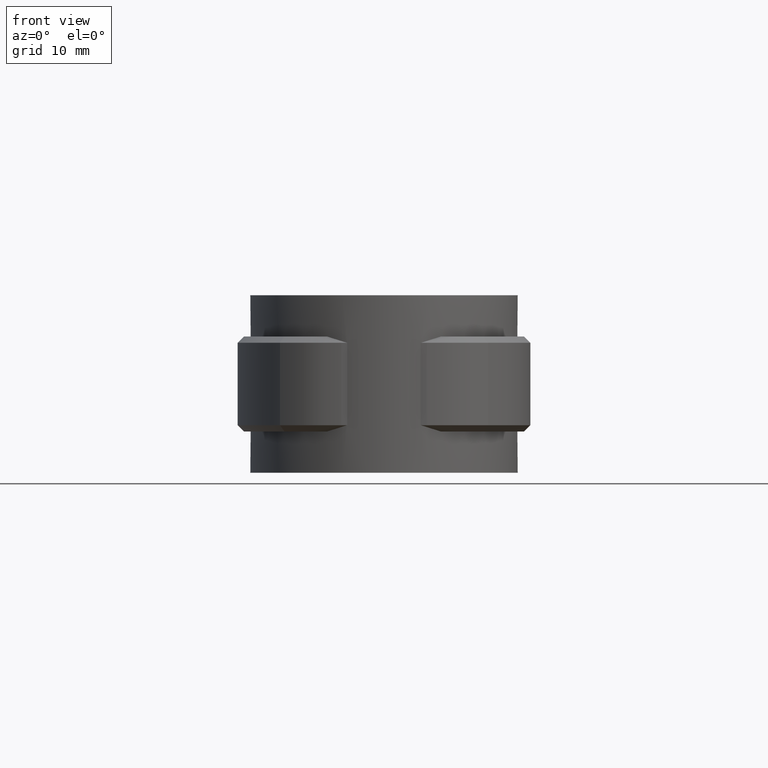
[diagram: clean part render]
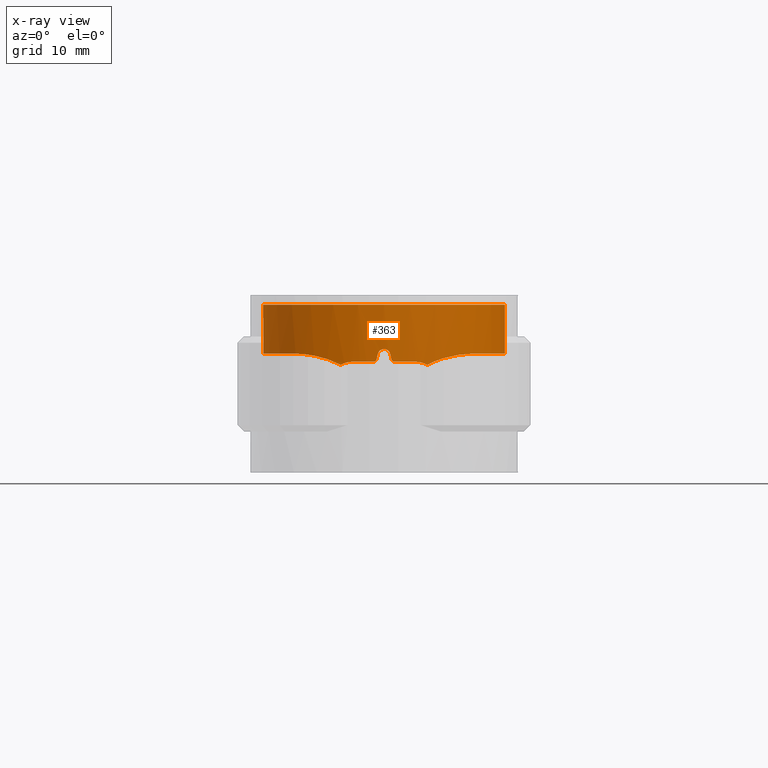
[diagram: x-ray — body ghosted, one internal face saturated and labeled with its STEP entity id]
A machine part, front view, then the same camera in x-ray: the body is ghosted and one INTERNAL B-rep face — a face not visible from any outside direction — is saturated and labeled: STEP entity #363.
In plain terms, the highlighted cylindrical surface (partial cylindrical patch) has radius 19.1 mm, axis along (0, 0, 1).
Its self-contained STEP definition (entity closure, byte-faithful):
#363 = ADVANCED_FACE( '', ( #695 ), #696, .T. );
#695 = FACE_OUTER_BOUND( '', #1404, .T. );
#696 = CYLINDRICAL_SURFACE( '', #1405, 19.1000000000000 );
#1404 = EDGE_LOOP( '', ( #2629, #2630, #2631, #2632, #2633, #2634, #2635, #2636, #2637, #2638, #2639, #2640, #2641, #2642, #2643, #2644 ) );
#1405 = AXIS2_PLACEMENT_3D( '', #2645, #2646, #2647 );
#2629 = ORIENTED_EDGE( '', *, *, #6118, .F. );
#2630 = ORIENTED_EDGE( '', *, *, #6119, .F. );
#2631 = ORIENTED_EDGE( '', *, *, #6120, .F. );
#2632 = ORIENTED_EDGE( '', *, *, #6121, .F. );
#2633 = ORIENTED_EDGE( '', *, *, #6122, .F. );
#2634 = ORIENTED_EDGE( '', *, *, #6123, .T. );
#2635 = ORIENTED_EDGE( '', *, *, #6124, .F. );
#2636 = ORIENTED_EDGE( '', *, *, #6125, .F. );
#2637 = ORIENTED_EDGE( '', *, *, #6126, .F. );
#2638 = ORIENTED_EDGE( '', *, *, #6127, .F. );
#2639 = ORIENTED_EDGE( '', *, *, #6128, .F. );
#2640 = ORIENTED_EDGE( '', *, *, #6129, .F. );
#2641 = ORIENTED_EDGE( '', *, *, #6130, .F. );
#2642 = ORIENTED_EDGE( '', *, *, #6131, .F. );
#2643 = ORIENTED_EDGE( '', *, *, #6132, .F. );
#2644 = ORIENTED_EDGE( '', *, *, #6133, .F. );
#2645 = CARTESIAN_POINT( '', ( 0.000000000000000, 0.000000000000000, 0.000000000000000 ) );
#2646 = DIRECTION( '', ( 0.000000000000000, 0.000000000000000, 1.00000000000000 ) );
#2647 = DIRECTION( '', ( 1.00000000000000, -6.12303176911189E-017, 0.000000000000000 ) );
#6118 = EDGE_CURVE( '', #7041, #7042, #7043, .T. );
#6119 = EDGE_CURVE( '', #7044, #7041, #7045, .T. );
#6120 = EDGE_CURVE( '', #7046, #7044, #7047, .T. );
#6121 = EDGE_CURVE( '', #7048, #7046, #7049, .T. );
#6122 = EDGE_CURVE( '', #7050, #7048, #7051, .F. );
#6123 = EDGE_CURVE( '', #7050, #7052, #7053, .T. );
#6124 = EDGE_CURVE( '', #7054, #7052, #7055, .T. );
#6125 = EDGE_CURVE( '', #7056, #7054, #7057, .T. );
#6126 = EDGE_CURVE( '', #7058, #7056, #7059, .T. );
#6127 = EDGE_CURVE( '', #7060, #7058, #7061, .T. );
#6128 = EDGE_CURVE( '', #7062, #7060, #7063, .T. );
#6129 = EDGE_CURVE( '', #7064, #7062, #7065, .T. );
#6130 = EDGE_CURVE( '', #7066, #7064, #7067, .T. );
#6131 = EDGE_CURVE( '', #7068, #7066, #7069, .T. );
#6132 = EDGE_CURVE( '', #7070, #7068, #7071, .T. );
#6133 = EDGE_CURVE( '', #7042, #7070, #7072, .T. );
#7041 = VERTEX_POINT( '', #8577 );
#7042 = VERTEX_POINT( '', #8578 );
#7043 = B_SPLINE_CURVE_WITH_KNOTS( '', 3, ( #8579, #8580, #8581, #8582, #8583, #8584, #8585, #8586 ), .UNSPECIFIED., .F., .F., ( 4, 2, 2, 4 ), ( 0.00930485489728146, 0.00980159790012564, 0.0102983409029698, 0.0112918269086582 ), .UNSPECIFIED. );
#7044 = VERTEX_POINT( '', #8587 );
#7045 = B_SPLINE_CURVE_WITH_KNOTS( '', 3, ( #8588, #8589, #8590, #8591, #8592, #8593, #8594, #8595, #8596, #8597, #8598, #8599 ), .UNSPECIFIED., .F., .F., ( 4, 2, 2, 2, 2, 4 ), ( 0.000000000000000, 0.00223758353469312, 0.00335637530203968, 0.00447516706938624, 0.00671275060407937, 0.00895033413877250 ), .UNSPECIFIED. );
#7046 = VERTEX_POINT( '', #8600 );
#7047 = B_SPLINE_CURVE_WITH_KNOTS( '', 3, ( #8601, #8602, #8603, #8604, #8605, #8606, #8607, #8608, #8609, #8610, #8611, #8612, #8613, #8614, #8615, #8616, #8617, #8618, #8619, #8620, #8621, #8622, #8623, #8624, #8625, #8626, #8627, #8628, #8629, #8630, #8631, #8632, #8633, #8634, #8635, #8636 ), .UNSPECIFIED., .F., .F., ( 4, 2, 2, 2, 2, 2, 2, 2, 2, 2, 2, 2, 2, 2, 2, 2, 2, 4 ), ( 0.000000000000000, 0.00475108088717999, 0.00593885110897499, 0.00712662133076999, 0.00950216177435998, 0.0118777022179500, 0.0130654724397450, 0.0142532426615400, 0.0190043235487200, 0.0201920937705150, 0.0213798639923100, 0.0237554044358999, 0.0249431746576949, 0.0261309448794899, 0.0285064853230799, 0.0308820257666699, 0.0332575662102599, 0.0380086470974399 ), .UNSPECIFIED. );
#7048 = VERTEX_POINT( '', #8637 );
#7049 = LINE( '', #8638, #8639 );
#7050 = VERTEX_POINT( '', #8640 );
#7051 = CIRCLE( '', #8641, 19.1000000000000 );
#7052 = VERTEX_POINT( '', #8642 );
#7053 = LINE( '', #8643, #8644 );
#7054 = VERTEX_POINT( '', #8645 );
#7055 = B_SPLINE_CURVE_WITH_KNOTS( '', 3, ( #8646, #8647, #8648, #8649, #8650, #8651, #8652, #8653, #8654, #8655, #8656, #8657, #8658, #8659, #8660, #8661, #8662, #8663, #8664, #8665, #8666, #8667, #8668, #8669, #8670, #8671, #8672, #8673, #8674, #8675, #8676, #8677, #8678, #8679, #8680, #8681 ), .UNSPECIFIED., .F., .F., ( 4, 2, 2, 2, 2, 2, 2, 2, 2, 2, 2, 2, 2, 2, 2, 2, 2, 4 ), ( 0.000000000000000, 0.00475107654079164, 0.00593884567598955, 0.00712661481118747, 0.00950215308158330, 0.0118776913519791, 0.0130654604871770, 0.0142532296223750, 0.0190043061631666, 0.0201920752983645, 0.0213798444335624, 0.0237553827039583, 0.0249431518391562, 0.0261309209743541, 0.0285064592447499, 0.0308819975151458, 0.0332575357855416, 0.0380086123263332 ), .UNSPECIFIED. );
#7056 = VERTEX_POINT( '', #8682 );
#7057 = B_SPLINE_CURVE_WITH_KNOTS( '', 3, ( #8683, #8684, #8685, #8686, #8687, #8688, #8689, #8690, #8691, #8692, #8693, #8694 ), .UNSPECIFIED., .F., .F., ( 4, 2, 2, 2, 2, 4 ), ( 0.00175160211347894, 0.00396907568867248, 0.00618654926386603, 0.00729528605146280, 0.00840402283905958, 0.0106214964142531 ), .UNSPECIFIED. );
#7058 = VERTEX_POINT( '', #8695 );
#7059 = B_SPLINE_CURVE_WITH_KNOTS( '', 3, ( #8696, #8697, #8698, #8699, #8700, #8701, #8702, #8703 ), .UNSPECIFIED., .F., .F., ( 4, 2, 2, 4 ), ( 3.46944695195361E-018, 0.000996698371651512, 0.00149504755747727, 0.00199339674330302 ), .UNSPECIFIED. );
#7060 = VERTEX_POINT( '', #8704 );
#7061 = CIRCLE( '', #8705, 19.1000000000000 );
#7062 = VERTEX_POINT( '', #8706 );
#7063 = B_SPLINE_CURVE_WITH_KNOTS( '', 3, ( #8707, #8708, #8709, #8710, #8711, #8712 ), .UNSPECIFIED., .F., .F., ( 4, 2, 4 ), ( 4.33680868994202E-019, 0.000336337775742347, 0.000672675551484694 ), .UNSPECIFIED. );
#7064 = VERTEX_POINT( '', #8713 );
#7065 = ELLIPSE( '', #8714, 87.0111998839009, 19.1000000000000 );
#7066 = VERTEX_POINT( '', #8715 );
#7067 = B_SPLINE_CURVE_WITH_KNOTS( '', 3, ( #8716, #8717, #8718, #8719, #8720, #8721, #8722, #8723, #8724, #8725 ), .UNSPECIFIED., .F., .F., ( 4, 2, 2, 2, 4 ), ( 0.000000000000000, 0.000671676872309651, 0.00134335374461930, 0.00201503061692895, 0.00268670748923860 ), .UNSPECIFIED. );
#7068 = VERTEX_POINT( '', #8726 );
#7069 = ELLIPSE( '', #8727, 87.0111554974909, 19.1000000000000 );
#7070 = VERTEX_POINT( '', #8728 );
#7071 = B_SPLINE_CURVE_WITH_KNOTS( '', 3, ( #8729, #8730, #8731, #8732, #8733, #8734 ), .UNSPECIFIED., .F., .F., ( 4, 2, 4 ), ( 8.20849171219253E-018, 0.000336327118468111, 0.000672654236936215 ), .UNSPECIFIED. );
#7072 = CIRCLE( '', #8735, 19.1000000000000 );
#8577 = CARTESIAN_POINT( '', ( 6.81905526878743, -17.8412579500788, -9.50984315978298 ) );
#8578 = CARTESIAN_POINT( '', ( 5.00000000000000, -18.4339360962329, -9.00000000000000 ) );
#8579 = CARTESIAN_POINT( '', ( 6.81905526878724, -17.8412579500781, -9.50984315978286 ) );
#8580 = CARTESIAN_POINT( '', ( 6.68368271215043, -17.8929983009080, -9.42748956578827 ) );
#8581 = CARTESIAN_POINT( '', ( 6.54119389277558, -17.9456552154205, -9.35360424239617 ) );
#8582 = CARTESIAN_POINT( '', ( 6.25071525526398, -18.0488868756841, -9.22726471757245 ) );
#8583 = CARTESIAN_POINT( '', ( 6.10205342860325, -18.0997396329836, -9.17427268426421 ) );
#8584 = CARTESIAN_POINT( '', ( 5.64566298384221, -18.2493565032353, -9.04557456820889 ) );
#8585 = CARTESIAN_POINT( '', ( 5.32448815223454, -18.3459222964290, -8.99999999999994 ) );
#8586 = CARTESIAN_POINT( '', ( 5.00000000000000, -18.4339360962330, -8.99999999999994 ) );
#8587 = CARTESIAN_POINT( '', ( 13.9497974310064, -13.0465800234959, -7.72134842581987 ) );
#8588 = CARTESIAN_POINT( '', ( 13.9487375409338, -13.0477094163743, -7.72135718793490 ) );
#8589 = CARTESIAN_POINT( '', ( 13.4375300633922, -13.5942190530959, -7.73205241137676 ) );
#8590 = CARTESIAN_POINT( '', ( 12.8974956627212, -14.1073780023349, -7.76999278455775 ) );
#8591 = CARTESIAN_POINT( '', ( 12.0451717407557, -14.8277515103729, -7.87211065263761 ) );
#8592 = CARTESIAN_POINT( '', ( 11.7537896944007, -15.0596842705441, -7.91397282004264 ) );
#8593 = CARTESIAN_POINT( '', ( 11.1644459084714, -15.5016389477206, -8.01349445764533 ) );
#8594 = CARTESIAN_POINT( '', ( 10.8656252400343, -15.7124170119223, -8.07122112833062 ) );
#8595 = CARTESIAN_POINT( '', ( 9.95800661632357, -16.3148872225008, -8.27142640207177 ) );
#8596 = CARTESIAN_POINT( '', ( 9.33787226663545, -16.6767989057806, -8.44006696159535 ) );
#8597 = CARTESIAN_POINT( '', ( 8.07731289124751, -17.3224852913412, -8.88128701216452 ) );
#8598 = CARTESIAN_POINT( '', ( 7.43085125747946, -17.6074251860550, -9.15670282519943 ) );
#8599 = CARTESIAN_POINT( '', ( 6.81905526878942, -17.8412579500773, -9.50984315978024 ) );
#8600 = CARTESIAN_POINT( '', ( 6.05609756097560, 18.1144605862815, -7.72310677885710 ) );
#8601 = CARTESIAN_POINT( '', ( 6.05609756097560, 18.1144605862815, -7.72310677885712 ) );
#8602 = CARTESIAN_POINT( '', ( 7.57969694207757, 17.6050848611890, -7.72562012981628 ) );
#8603 = CARTESIAN_POINT( '', ( 9.00781461851785, 16.9172655312135, -7.72756432809327 ) );
#8604 = CARTESIAN_POINT( '', ( 10.6774888721976, 15.8416861069945, -7.72556171551318 ) );
#8605 = CARTESIAN_POINT( '', ( 11.0055643952891, 15.6156198358674, -7.72500931238455 ) );
#8606 = CARTESIAN_POINT( '', ( 11.6497459801908, 15.1411178290845, -7.72378723809442 ) );
#8607 = CARTESIAN_POINT( '', ( 11.9661862444493, 14.8922751207296, -7.72311724225985 ) );
#8608 = CARTESIAN_POINT( '', ( 12.8841862084422, 14.1225221465428, -7.72141074492537 ) );
#8609 = CARTESIAN_POINT( '', ( 13.4590934723205, 13.5753396746223, -7.72102008189725 ) );
#8610 = CARTESIAN_POINT( '', ( 14.5366058856560, 12.4146741279481, -7.72209307797864 ) );
#8611 = CARTESIAN_POINT( '', ( 15.0392097496581, 11.8011898132735, -7.72312844814024 ) );
#8612 = CARTESIAN_POINT( '', ( 15.7377328261334, 10.8301774324812, -7.72407804340158 ) );
#8613 = CARTESIAN_POINT( '', ( 15.9619535607510, 10.4969838253384, -7.72430459482359 ) );
#8614 = CARTESIAN_POINT( '', ( 16.3882395453966, 9.81815845806580, -7.72448464818963 ) );
#8615 = CARTESIAN_POINT( '', ( 16.5896568409422, 9.47372222854536, -7.72443862695567 ) );
#8616 = CARTESIAN_POINT( '', ( 17.5394804084396, 7.72700837476189, -7.72358711091556 ) );
#8617 = CARTESIAN_POINT( '', ( 18.1187582240814, 6.25227254480824, -7.72049976296089 ) );
#8618 = CARTESIAN_POINT( '', ( 18.6117181531904, 4.30982503804202, -7.72188431563499 ) );
#8619 = CARTESIAN_POINT( '', ( 18.6981535280275, 3.91765520529962, -7.72231305974907 ) );
#8620 = CARTESIAN_POINT( '', ( 18.8453538199351, 3.13394433051340, -7.72317948483669 ) );
#8621 = CARTESIAN_POINT( '', ( 18.9064230279706, 2.74124292481065, -7.72361810307561 ) );
#8622 = CARTESIAN_POINT( '', ( 19.0526474488858, 1.56064189680553, -7.72466713815329 ) );
#8623 = CARTESIAN_POINT( '', ( 19.1009604714527, 0.770254973364756, -7.72496397996976 ) );
#8624 = CARTESIAN_POINT( '', ( 19.0994981536895, -0.420316774834448, -7.72453235057386 ) );
#8625 = CARTESIAN_POINT( '', ( 19.0866535791344, -0.818008289223871, -7.72425400711996 ) );
#8626 = CARTESIAN_POINT( '', ( 19.0357810945132, -1.61509149366079, -7.72352624738677 ) );
#8627 = CARTESIAN_POINT( '', ( 18.9975364675251, -2.01584394781422, -7.72307515961964 ) );
#8628 = CARTESIAN_POINT( '', ( 18.8459467068403, -3.20630119459723, -7.72177922285933 ) );
#8629 = CARTESIAN_POINT( '', ( 18.6961347971829, -3.98644916271011, -7.72102289809109 ) );
#8630 = CARTESIAN_POINT( '', ( 18.3019266073316, -5.52057204836203, -7.72184820040979 ) );
#8631 = CARTESIAN_POINT( '', ( 18.0575251328200, -6.27454562977232, -7.72306305140462 ) );
#8632 = CARTESIAN_POINT( '', ( 17.4725612059799, -7.75588432648445, -7.72476107474609 ) );
#8633 = CARTESIAN_POINT( '', ( 17.1295431999573, -8.48668405816067, -7.72522902838233 ) );
#8634 = CARTESIAN_POINT( '', ( 15.9798247934780, -10.5827891285198, -7.72453653077102 ) );
#8635 = CARTESIAN_POINT( '', ( 15.0500236748557, -11.8696085672741, -7.72043645344049 ) );
#8636 = CARTESIAN_POINT( '', ( 13.9529666093793, -13.0431868344184, -7.72131128926675 ) );
#8637 = CARTESIAN_POINT( '', ( 6.05609756097560, 18.1144605862815, 0.000000000000000 ) );
#8638 = CARTESIAN_POINT( '', ( 6.05609756097560, 18.1144605862815, 0.000000000000000 ) );
#8639 = VECTOR( '', #12319, 1000.00000000000 );
#8640 = CARTESIAN_POINT( '', ( -6.05609756097562, 18.1144605862815, 0.000000000000000 ) );
#8641 = AXIS2_PLACEMENT_3D( '', #12320, #12321, #12322 );
#8642 = CARTESIAN_POINT( '', ( -6.05609756097561, 18.1144605862815, -7.72310677885710 ) );
#8643 = CARTESIAN_POINT( '', ( -6.05609756097561, 18.1144605862815, 0.000000000000000 ) );
#8644 = VECTOR( '', #12323, 1000.00000000000 );
#8645 = CARTESIAN_POINT( '', ( -13.9497974301472, -13.0465800259749, -7.72134842667798 ) );
#8646 = CARTESIAN_POINT( '', ( -13.9529666093794, -13.0431868344184, -7.72131128926690 ) );
#8647 = CARTESIAN_POINT( '', ( -15.0500237828148, -11.8696084517849, -7.72043645335455 ) );
#8648 = CARTESIAN_POINT( '', ( -15.9781303747222, -10.5846086327108, -7.72452833013873 ) );
#8649 = CARTESIAN_POINT( '', ( -16.9339433597668, -8.84360498747049, -7.72511298919389 ) );
#8650 = CARTESIAN_POINT( '', ( -17.1147383029710, -8.48856659890243, -7.72507329389932 ) );
#8651 = CARTESIAN_POINT( '', ( -17.4551491159639, -7.76452184121150, -7.72469069820386 ) );
#8652 = CARTESIAN_POINT( '', ( -17.6148654171088, -7.39499751519392, -7.72434629642375 ) );
#8653 = CARTESIAN_POINT( '', ( -18.0554123260639, -6.28092138035002, -7.72307252744860 ) );
#8654 = CARTESIAN_POINT( '', ( -18.3002941409914, -5.52596405757659, -7.72185533536814 ) );
#8655 = CARTESIAN_POINT( '', ( -18.6949045640674, -3.99219084624516, -7.72102178329998 ) );
#8656 = CARTESIAN_POINT( '', ( -18.8446314327881, -3.21337446638487, -7.72177215684535 ) );
#8657 = CARTESIAN_POINT( '', ( -18.9963353447760, -2.02687463685485, -7.72306284032771 ) );
#8658 = CARTESIAN_POINT( '', ( -19.0347879010739, -1.62710831433997, -7.72351382801320 ) );
#8659 = CARTESIAN_POINT( '', ( -19.0862881371186, -0.827186225919107, -7.72424703716699 ) );
#8660 = CARTESIAN_POINT( '', ( -19.0993352459974, -0.428393244554324, -7.72452781443443 ) );
#8661 = CARTESIAN_POINT( '', ( -19.1025353225673, 1.55986731028730, -7.72525660513805 ) );
#8662 = CARTESIAN_POINT( '', ( -18.9094638628394, 3.13248650141633, -7.72273565996692 ) );
#8663 = CARTESIAN_POINT( '', ( -18.4177254912729, 5.07523705672603, -7.72133575810553 ) );
#8664 = CARTESIAN_POINT( '', ( -18.3069348882443, 5.46123642466597, -7.72123836358930 ) );
#8665 = CARTESIAN_POINT( '', ( -18.0630822162915, 6.22045248643623, -7.72154207712792 ) );
#8666 = CARTESIAN_POINT( '', ( -17.9297347740257, 6.59483552095196, -7.72188622711884 ) );
#8667 = CARTESIAN_POINT( '', ( -17.4959848333618, 7.70256406477955, -7.72303901687144 ) );
#8668 = CARTESIAN_POINT( '', ( -17.1620032405417, 8.42054782988430, -7.72392232629605 ) );
#8669 = CARTESIAN_POINT( '', ( -16.5936474503959, 9.46669739338388, -7.72443662379579 ) );
#8670 = CARTESIAN_POINT( '', ( -16.3929329080575, 9.81026156858541, -7.72448436445544 ) );
#8671 = CARTESIAN_POINT( '', ( -15.9685511547398, 10.4868896909712, -7.72430958813522 ) );
#8672 = CARTESIAN_POINT( '', ( -15.7440449640187, 10.8210474374511, -7.72408539519682 ) );
#8673 = CARTESIAN_POINT( '', ( -15.0437365910588, 11.7955952486206, -7.72313701580572 ) );
#8674 = CARTESIAN_POINT( '', ( -14.5404233322605, 12.4102104361819, -7.72209974525944 ) );
#8675 = CARTESIAN_POINT( '', ( -13.4630976801797, 13.5713755605541, -7.72102122423220 ) );
#8676 = CARTESIAN_POINT( '', ( -12.8890814142129, 14.1179217442160, -7.72140425858117 ) );
#8677 = CARTESIAN_POINT( '', ( -11.6691719729920, 15.1418149355602, -7.72366678687973 ) );
#8678 = CARTESIAN_POINT( '', ( -11.0194818660193, 15.6210140373318, -7.72514771389556 ) );
#8679 = CARTESIAN_POINT( '', ( -9.01017151120735, 16.9164727392802, -7.72756907713160 ) );
#8680 = CARTESIAN_POINT( '', ( -7.57969615966783, 17.6050851227673, -7.72562012852560 ) );
#8681 = CARTESIAN_POINT( '', ( -6.05609756097563, 18.1144605862815, -7.72310677885712 ) );
#8682 = CARTESIAN_POINT( '', ( -6.81905526877979, -17.8412579500772, -9.50984315977826 ) );
#8683 = CARTESIAN_POINT( '', ( -6.81905526877041, -17.8412579500845, -9.50984315979122 ) );
#8684 = CARTESIAN_POINT( '', ( -7.42763704447824, -17.6086536810510, -9.15855813035737 ) );
#8685 = CARTESIAN_POINT( '', ( -8.07310001833639, -17.3244444503955, -8.88298741813442 ) );
#8686 = CARTESIAN_POINT( '', ( -9.33361801480388, -16.6791754644716, -8.44133172379555 ) );
#8687 = CARTESIAN_POINT( '', ( -9.95588586230269, -16.3163826749193, -8.27183600323848 ) );
#8688 = CARTESIAN_POINT( '', ( -10.8690757200443, -15.7100825814616, -8.07048922596690 ) );
#8689 = CARTESIAN_POINT( '', ( -11.1710481874338, -15.4969193564743, -8.01225232479672 ) );
#8690 = CARTESIAN_POINT( '', ( -11.7626909924474, -15.0527714313090, -7.91260026409568 ) );
#8691 = CARTESIAN_POINT( '', ( -12.0519029772935, -14.8222324025927, -7.87122187063902 ) );
#8692 = CARTESIAN_POINT( '', ( -12.8995317491416, -14.1053123232048, -7.76991572725703 ) );
#8693 = CARTESIAN_POINT( '', ( -13.4379688122551, -13.5937500058064, -7.73204323209567 ) );
#8694 = CARTESIAN_POINT( '', ( -13.9487375409338, -13.0477094163743, -7.72135718793489 ) );
#8695 = CARTESIAN_POINT( '', ( -5.00000000000005, -18.4339360962329, -9.00000000000000 ) );
#8696 = CARTESIAN_POINT( '', ( -5.00000000000005, -18.4339360962329, -8.99999999999997 ) );
#8697 = CARTESIAN_POINT( '', ( -5.32540233347538, -18.3456743349421, -8.99999999999997 ) );
#8698 = CARTESIAN_POINT( '', ( -5.64090279093093, -18.2508677392978, -9.04449098640548 ) );
#8699 = CARTESIAN_POINT( '', ( -6.10049621370522, -18.1002744545514, -9.17370584339949 ) );
#8700 = CARTESIAN_POINT( '', ( -6.25233926244758, -18.0483288156473, -9.22785801069391 ) );
#8701 = CARTESIAN_POINT( '', ( -6.54378610163255, -17.9447146186990, -9.35484637913282 ) );
#8702 = CARTESIAN_POINT( '', ( -6.68405498629084, -17.8928560150923, -9.42771603793463 ) );
#8703 = CARTESIAN_POINT( '', ( -6.81905526878073, -17.8412579500806, -9.50984315977883 ) );
#8704 = CARTESIAN_POINT( '', ( -1.65000000000003, -19.0285969004548, -9.00000000000000 ) );
#8705 = AXIS2_PLACEMENT_3D( '', #12324, #12325, #12326 );
#8706 = CARTESIAN_POINT( '', ( -1.16219512100914, -19.0646086374912, -8.60975609337373 ) );
#8707 = CARTESIAN_POINT( '', ( -1.16219512100915, -19.0646086374912, -8.60975609337372 ) );
#8708 = CARTESIAN_POINT( '', ( -1.18715765708161, -19.0630868995849, -8.72070070258703 ) );
#8709 = CARTESIAN_POINT( '', ( -1.24923773707083, -19.0593103406564, -8.81980675290700 ) );
#8710 = CARTESIAN_POINT( '', ( -1.42662763242333, -19.0468537870059, -8.96151006055798 ) );
#8711 = CARTESIAN_POINT( '', ( -1.53670637462590, -19.0384207714867, -8.99999999999994 ) );
#8712 = CARTESIAN_POINT( '', ( -1.65000000000003, -19.0285969004548, -8.99999999999994 ) );
#8713 = CARTESIAN_POINT( '', ( -0.975610000000025, -19.0750671067732, -7.78048800000004 ) );
#8714 = AXIS2_PLACEMENT_3D( '', #12327, #12328, #12329 );
#8715 = CARTESIAN_POINT( '', ( 0.975609757981813, -19.0750671191514, -7.78048781325256 ) );
#8716 = CARTESIAN_POINT( '', ( 0.975609757981815, -19.0750671191514, -7.78048781325255 ) );
#8717 = CARTESIAN_POINT( '', ( 0.925757385009208, -19.0776168591459, -7.55892180128992 ) );
#8718 = CARTESIAN_POINT( '', ( 0.801997831383430, -19.0839791880777, -7.36098161968766 ) );
#8719 = CARTESIAN_POINT( '', ( 0.447436048285922, -19.0955822942172, -7.07731587360205 ) );
#8720 = CARTESIAN_POINT( '', ( 0.227117419891250, -19.1000000160627, -6.99999971248022 ) );
#8721 = CARTESIAN_POINT( '', ( -0.227120121551986, -19.0999999839372, -7.00000028065425 ) );
#8722 = CARTESIAN_POINT( '', ( -0.447488444089590, -19.0955808086857, -7.07734852942236 ) );
#8723 = CARTESIAN_POINT( '', ( -0.801994740210287, -19.0839790600733, -7.36098809107857 ) );
#8724 = CARTESIAN_POINT( '', ( -0.925757662153678, -19.0776168456052, -7.55892194611682 ) );
#8725 = CARTESIAN_POINT( '', ( -0.975610000000025, -19.0750671067732, -7.78048800000004 ) );
#8726 = CARTESIAN_POINT( '', ( 1.16219499999999, -19.0646086448680, -8.60975599999999 ) );
#8727 = AXIS2_PLACEMENT_3D( '', #12330, #12331, #12332 );
#8728 = CARTESIAN_POINT( '', ( 1.64999999999995, -19.0285969004549, -9.00000000000000 ) );
#8729 = CARTESIAN_POINT( '', ( 1.64999999999995, -19.0285969004549, -8.99999999999995 ) );
#8730 = CARTESIAN_POINT( '', ( 1.53670633490443, -19.0384207749310, -9.00000000048620 ) );
#8731 = CARTESIAN_POINT( '', ( 1.42662640035972, -19.0468538504426, -8.96150724820204 ) );
#8732 = CARTESIAN_POINT( '', ( 1.24924883699643, -19.0593095842841, -8.81981751974237 ) );
#8733 = CARTESIAN_POINT( '', ( 1.18715754853016, -19.0630869063613, -8.72070066235751 ) );
#8734 = CARTESIAN_POINT( '', ( 1.16219499999999, -19.0646086448680, -8.60975599999999 ) );
#8735 = AXIS2_PLACEMENT_3D( '', #12333, #12334, #12335 );
#12319 = DIRECTION( '', ( 0.000000000000000, 0.000000000000000, -1.00000000000000 ) );
#12320 = CARTESIAN_POINT( '', ( 0.000000000000000, 0.000000000000000, 0.000000000000000 ) );
#12321 = DIRECTION( '', ( 0.000000000000000, 0.000000000000000, -1.00000000000000 ) );
#12322 = DIRECTION( '', ( -1.00000000000000, 0.000000000000000, 0.000000000000000 ) );
#12323 = DIRECTION( '', ( 0.000000000000000, 0.000000000000000, -1.00000000000000 ) );
#12324 = CARTESIAN_POINT( '', ( 0.000000000000000, 0.000000000000000, -9.00000000000000 ) );
#12325 = DIRECTION( '', ( 6.12303176911189E-017, 0.000000000000000, -1.00000000000000 ) );
#12326 = DIRECTION( '', ( -1.00000000000000, 0.000000000000000, -6.12303176911189E-017 ) );
#12327 = CARTESIAN_POINT( '', ( 0.000000000000000, 0.000000000000000, -3.44443890776446 ) );
#12328 = DIRECTION( '', ( 0.975609806487711, 0.000000000000000, -0.219511971165610 ) );
#12329 = DIRECTION( '', ( -0.219511971165610, 0.000000000000000, -0.975609806487711 ) );
#12330 = CARTESIAN_POINT( '', ( 0.000000000000000, 0.000000000000000, -3.44444212055029 ) );
#12331 = DIRECTION( '', ( -0.975609781292647, 0.000000000000000, -0.219512083143762 ) );
#12332 = DIRECTION( '', ( 0.219512083143762, 0.000000000000000, -0.975609781292647 ) );
#12333 = CARTESIAN_POINT( '', ( 0.000000000000000, 0.000000000000000, -9.00000000000000 ) );
#12334 = DIRECTION( '', ( 6.12303176911189E-017, 0.000000000000000, -1.00000000000000 ) );
#12335 = DIRECTION( '', ( -1.00000000000000, 0.000000000000000, -6.12303176911189E-017 ) );